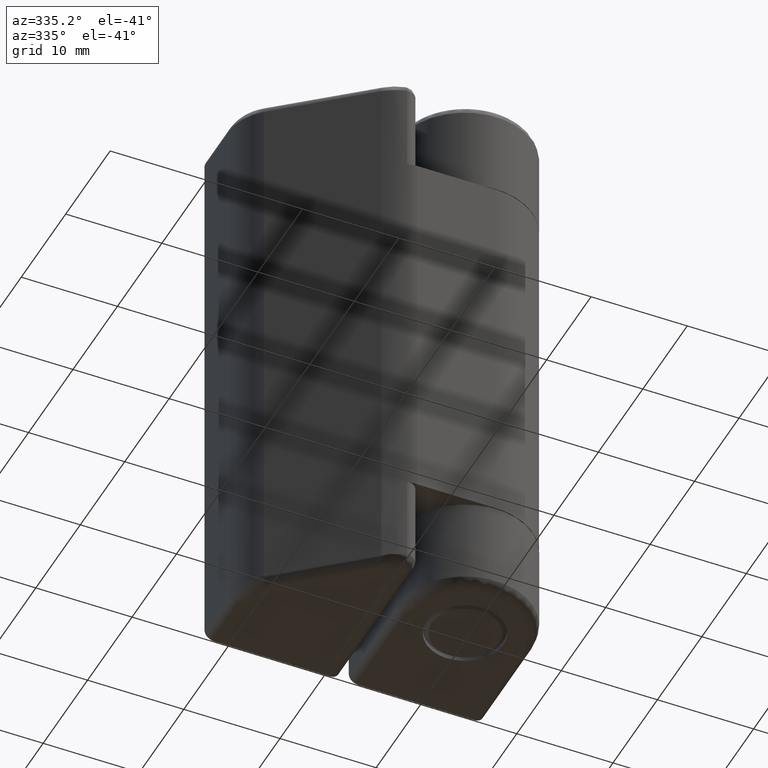
[diagram: clean part render]
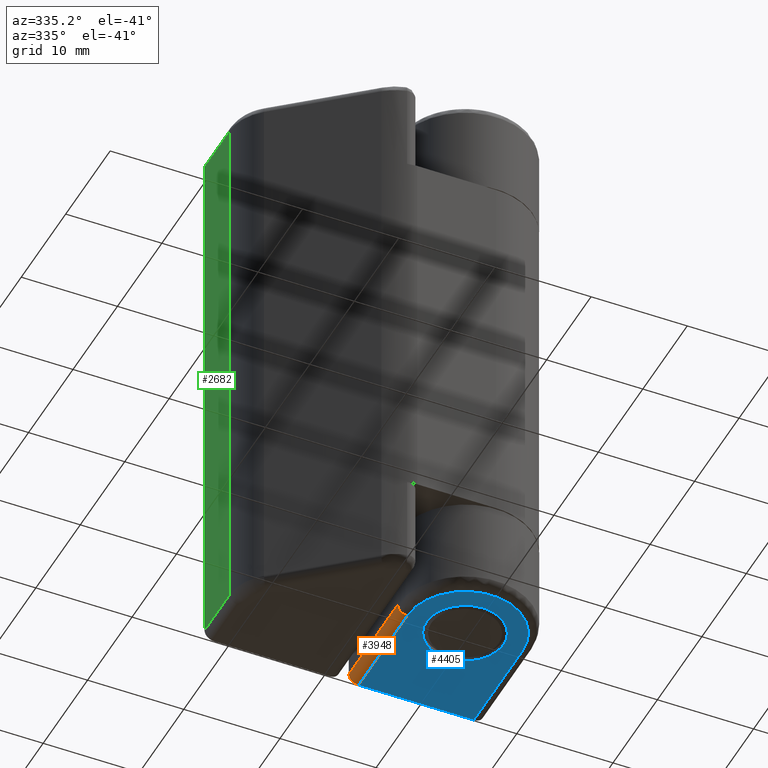
[diagram: same view with three faces highlighted in distinct colors, each labeled with its STEP entity id]
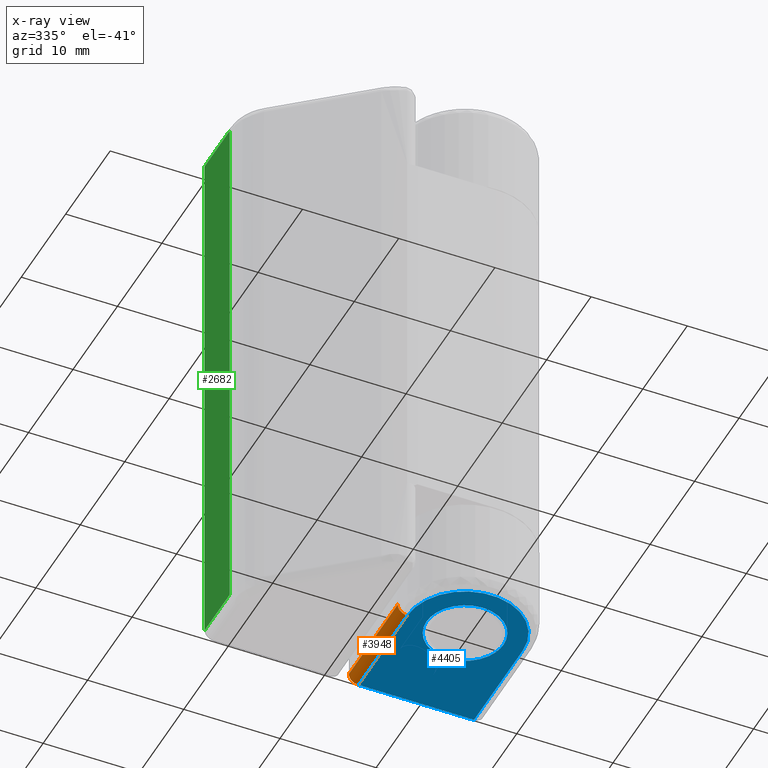
[diagram: x-ray of the same camera — body ghosted, the three highlighted faces saturated]
A machine part, auxiliary view with three faces highlighted in distinct colors.
The next image is the same camera in x-ray (body ghosted, the three faces saturated) — at least one of them is partly hidden behind the body in this view.
Their STEP definitions:

[orange] entity #3948 — the highlighted face is a freeform B-spline surface patch.
#3888=CARTESIAN_POINT('',(-5.973823051692126,11.274999984728369,0.000342675024443));
#3889=CARTESIAN_POINT('',(-5.973823051692126,-0.281874373481340,0.000342675024443));
#3890=CARTESIAN_POINT('',(-7.064757588594119,11.274999984728371,-0.028224451195991));
#3891=CARTESIAN_POINT('',(-7.064757588594119,-0.281874373481340,-0.028224451195991));
#3892=CARTESIAN_POINT('',(-6.998134798421868,11.274999984728369,1.061048539534856));
#3893=CARTESIAN_POINT('',(-6.998134798421868,-0.281874373481340,1.061048539534856));
#3901=(BOUNDED_SURFACE()B_SPLINE_SURFACE(1,2,((#3888,#3890,#3892),(#3889,#3891,#3893)),.UNSPECIFIED.,.F.,.F.,.U.)B_SPLINE_SURFACE_WITH_KNOTS((2,2),(3,3),(0.0,11.556874358209710),(0.0,1.0),.UNSPECIFIED.)GEOMETRIC_REPRESENTATION_ITEM()RATIONAL_B_SPLINE_SURFACE(((1.0,0.675590207615660,1.0),(1.0,0.675590207615660,1.0)))REPRESENTATION_ITEM('')SURFACE());
#3902=CARTESIAN_POINT('',(-6.0,0.000000610865237,0.0));
#3903=VERTEX_POINT('',#3902);
#3904=CARTESIAN_POINT('',(-7.0,0.000000610865237,1.0));
#3905=VERTEX_POINT('',#3904);
#3906=CARTESIAN_POINT('',(-6.0,0.000000610865237,0.0));
#3907=CARTESIAN_POINT('',(-6.999999999999999,0.000000610865237,0.0));
#3908=CARTESIAN_POINT('',(-7.0,0.000000610865237,1.0));
#3916=(BOUNDED_CURVE()B_SPLINE_CURVE(2,(#3906,#3907,#3908),.UNSPECIFIED.,.F.,.U.)CURVE()GEOMETRIC_REPRESENTATION_ITEM()QUASI_UNIFORM_CURVE()RATIONAL_B_SPLINE_CURVE((1.0,0.707106781186548,1.0))REPRESENTATION_ITEM(''));
#3917=EDGE_CURVE('',#3903,#3905,#3916,.T.);
#3918=ORIENTED_EDGE('',*,*,#3917,.T.);
#3919=CARTESIAN_POINT('',(-7.0,11.0,1.0));
#3920=VERTEX_POINT('',#3919);
#3921=CARTESIAN_POINT('',(-7.0,11.0,1.0));
#3922=CARTESIAN_POINT('',(-7.0,0.000000610865237,1.0));
#3923=QUASI_UNIFORM_CURVE('',1,(#3921,#3922),.UNSPECIFIED.,.F.,.U.);
#3924=EDGE_CURVE('',#3920,#3905,#3923,.T.);
#3925=ORIENTED_EDGE('',*,*,#3924,.F.);
#3926=CARTESIAN_POINT('',(-6.0,11.0,0.0));
#3927=VERTEX_POINT('',#3926);
#3928=CARTESIAN_POINT('',(-6.0,11.0,0.0));
#3929=CARTESIAN_POINT('',(-6.999999999999999,11.0,0.0));
#3930=CARTESIAN_POINT('',(-7.0,11.0,1.0));
#3938=(BOUNDED_CURVE()B_SPLINE_CURVE(2,(#3928,#3929,#3930),.UNSPECIFIED.,.F.,.U.)CURVE()GEOMETRIC_REPRESENTATION_ITEM()QUASI_UNIFORM_CURVE()RATIONAL_B_SPLINE_CURVE((1.0,0.707106781186548,1.0))REPRESENTATION_ITEM(''));
#3939=EDGE_CURVE('',#3927,#3920,#3938,.T.);
#3940=ORIENTED_EDGE('',*,*,#3939,.F.);
#3941=CARTESIAN_POINT('',(-6.0,0.000000610865237,0.0));
#3942=CARTESIAN_POINT('',(-6.0,11.0,0.0));
#3943=QUASI_UNIFORM_CURVE('',1,(#3941,#3942),.UNSPECIFIED.,.F.,.U.);
#3944=EDGE_CURVE('',#3903,#3927,#3943,.T.);
#3945=ORIENTED_EDGE('',*,*,#3944,.F.);
#3946=EDGE_LOOP('',(#3918,#3925,#3940,#3945));
#3947=FACE_OUTER_BOUND('',#3946,.T.);
#3948=ADVANCED_FACE('',(#3947),#3901,.T.);

[blue] entity #4405 — the highlighted face is a freeform B-spline surface patch.
#3470=CARTESIAN_POINT('',(-2.611770808497507,-3.029629225479135,5.305159E-014));
#3471=VERTEX_POINT('',#3470);
#3472=CARTESIAN_POINT('',(-4.0,0.0,0.0));
#3473=VERTEX_POINT('',#3472);
#3474=CARTESIAN_POINT('',(-2.611770808497507,-3.029629225479134,5.305159E-014));
#3475=CARTESIAN_POINT('',(-4.0,-1.832870081694665,0.0));
#3476=CARTESIAN_POINT('',(-4.0,0.0,0.0));
#3484=(BOUNDED_CURVE()B_SPLINE_CURVE(2,(#3474,#3475,#3476),.UNSPECIFIED.,.F.,.U.)B_SPLINE_CURVE_WITH_KNOTS((3,3),(0.363838989722235,0.500000000000000),.UNSPECIFIED.)CURVE()GEOMETRIC_REPRESENTATION_ITEM()RATIONAL_B_SPLINE_CURVE((0.854720915922498,0.840477453691415,1.0))REPRESENTATION_ITEM(''));
#3485=EDGE_CURVE('',#3471,#3473,#3484,.T.);
#3487=CARTESIAN_POINT('',(4.0,0.0,0.0));
#3488=VERTEX_POINT('',#3487);
#3489=CARTESIAN_POINT('',(-4.0,0.0,0.0));
#3490=CARTESIAN_POINT('',(-4.000000000000000,4.000000000000000,0.0));
#3491=CARTESIAN_POINT('',(0.0,4.0,0.0));
#3492=CARTESIAN_POINT('',(4.000000000000000,4.000000000000000,0.0));
#3493=CARTESIAN_POINT('',(4.0,0.0,0.0));
#3501=(BOUNDED_CURVE()B_SPLINE_CURVE(2,(#3489,#3490,#3491,#3492,#3493),.UNSPECIFIED.,.F.,.U.)B_SPLINE_CURVE_WITH_KNOTS((3,2,3),(0.500000000000000,0.750000000000000,1.0),.UNSPECIFIED.)CURVE()GEOMETRIC_REPRESENTATION_ITEM()RATIONAL_B_SPLINE_CURVE((1.0,0.707106781186548,1.0,0.707106781186548,1.0))REPRESENTATION_ITEM(''));
#3502=EDGE_CURVE('',#3473,#3488,#3501,.T.);
#3504=CARTESIAN_POINT('',(-0.101568946200916,-3.998710260717527,2.775558E-017));
#3505=VERTEX_POINT('',#3504);
#3506=CARTESIAN_POINT('',(4.0,0.0,0.0));
#3507=CARTESIAN_POINT('',(4.000000000000000,-4.000000000000000,0.0));
#3508=CARTESIAN_POINT('',(0.0,-4.0,0.0));
#3509=CARTESIAN_POINT('',(-0.050792661822428,-4.0,0.0));
#3510=CARTESIAN_POINT('',(-0.101568946200916,-3.998710260717526,2.775558E-017));
#3518=(BOUNDED_CURVE()B_SPLINE_CURVE(2,(#3506,#3507,#3508,#3509,#3510),.UNSPECIFIED.,.F.,.U.)B_SPLINE_CURVE_WITH_KNOTS((3,2,3),(0.0,0.250000000000000,0.254465989452630),.UNSPECIFIED.)CURVE()GEOMETRIC_REPRESENTATION_ITEM()RATIONAL_B_SPLINE_CURVE((1.0,0.707106781186548,1.0,0.994767767896129,0.989722472539374))REPRESENTATION_ITEM(''));
#3519=EDGE_CURVE('',#3488,#3505,#3518,.T.);
#3615=CARTESIAN_POINT('',(-0.101568946200916,-3.998710260717526,2.775558E-017));
#3616=CARTESIAN_POINT('',(-1.529725620094527,-3.962434472002540,0.0));
#3617=CARTESIAN_POINT('',(-2.611770808497507,-3.029629225479134,5.305159E-014));
#3625=(BOUNDED_CURVE()B_SPLINE_CURVE(2,(#3615,#3616,#3617),.UNSPECIFIED.,.F.,.U.)B_SPLINE_CURVE_WITH_KNOTS((3,3),(0.254465989452630,0.363838989722235),.UNSPECIFIED.)CURVE()GEOMETRIC_REPRESENTATION_ITEM()RATIONAL_B_SPLINE_CURVE((0.989722472539374,0.866162151524837,0.854720915922498))REPRESENTATION_ITEM(''));
#3626=EDGE_CURVE('',#3505,#3471,#3625,.T.);
#3902=CARTESIAN_POINT('',(-6.0,0.000000610865237,0.0));
#3903=VERTEX_POINT('',#3902);
#3926=CARTESIAN_POINT('',(-6.0,11.0,0.0));
#3927=VERTEX_POINT('',#3926);
#3941=CARTESIAN_POINT('',(-6.0,0.000000610865237,0.0));
#3942=CARTESIAN_POINT('',(-6.0,11.0,0.0));
#3943=QUASI_UNIFORM_CURVE('',1,(#3941,#3942),.UNSPECIFIED.,.F.,.U.);
#3944=EDGE_CURVE('',#3903,#3927,#3943,.T.);
#3972=CARTESIAN_POINT('',(6.0,0.0,0.0));
#3973=VERTEX_POINT('',#3972);
#4007=CARTESIAN_POINT('',(6.0,0.0,0.0));
#4008=CARTESIAN_POINT('',(5.999999999999999,-3.464101750885587,0.0));
#4009=CARTESIAN_POINT('',(2.999999823658394,-5.196152524517501,0.0));
#4010=CARTESIAN_POINT('',(-0.000000352683213,-6.928203298149417,0.0));
#4011=CARTESIAN_POINT('',(-3.000000352683202,-5.196152219084875,0.0));
#4012=CARTESIAN_POINT('',(-6.000000352683191,-3.464101140020333,0.0));
#4013=CARTESIAN_POINT('',(-6.0,0.000000610865237,0.0));
#4021=(BOUNDED_CURVE()B_SPLINE_CURVE(2,(#4007,#4008,#4009,#4010,#4011,#4012,#4013),.UNSPECIFIED.,.F.,.U.)B_SPLINE_CURVE_WITH_KNOTS((3,2,2,3),(0.0,0.333333333333333,0.666666666666667,1.0),.UNSPECIFIED.)CURVE()GEOMETRIC_REPRESENTATION_ITEM()RATIONAL_B_SPLINE_CURVE((1.0,0.866025395300199,1.0,0.866025395300199,1.0,0.866025395300199,1.0))REPRESENTATION_ITEM(''));
#4022=EDGE_CURVE('',#3973,#3903,#4021,.T.);
#4043=CARTESIAN_POINT('',(6.0,11.0,0.0));
#4044=VERTEX_POINT('',#4043);
#4064=CARTESIAN_POINT('',(6.0,11.0,0.0));
#4065=CARTESIAN_POINT('',(6.0,0.0,0.0));
#4066=QUASI_UNIFORM_CURVE('',1,(#4064,#4065),.UNSPECIFIED.,.F.,.U.);
#4067=EDGE_CURVE('',#4044,#3973,#4066,.T.);
#4384=CARTESIAN_POINT('',(-6.599399976741672,-6.849149967050694,0.0));
#4385=CARTESIAN_POINT('',(6.599400298606753,-6.849149967050694,0.0));
#4386=CARTESIAN_POINT('',(-6.599399976741672,11.849150423026231,0.0));
#4387=CARTESIAN_POINT('',(6.599400298606753,11.849150423026231,0.0));
#4388=B_SPLINE_SURFACE_WITH_KNOTS('',1,1,((#4384,#4386),(#4385,#4387)),.UNSPECIFIED.,.F.,.F.,.U.,(2,2),(2,2),(0.0,13.198800275348431),(0.0,18.698300390076930),.UNSPECIFIED.);
#4389=ORIENTED_EDGE('',*,*,#4022,.T.);
#4390=ORIENTED_EDGE('',*,*,#3944,.T.);
#4391=CARTESIAN_POINT('',(-6.0,11.0,0.0));
#4392=CARTESIAN_POINT('',(6.0,11.0,0.0));
#4393=QUASI_UNIFORM_CURVE('',1,(#4391,#4392),.UNSPECIFIED.,.F.,.U.);
#4394=EDGE_CURVE('',#3927,#4044,#4393,.T.);
#4395=ORIENTED_EDGE('',*,*,#4394,.T.);
#4396=ORIENTED_EDGE('',*,*,#4067,.T.);
#4397=EDGE_LOOP('',(#4389,#4390,#4395,#4396));
#4398=FACE_OUTER_BOUND('',#4397,.T.);
#4399=ORIENTED_EDGE('',*,*,#3502,.F.);
#4400=ORIENTED_EDGE('',*,*,#3485,.F.);
#4401=ORIENTED_EDGE('',*,*,#3626,.F.);
#4402=ORIENTED_EDGE('',*,*,#3519,.F.);
#4403=EDGE_LOOP('',(#4399,#4400,#4401,#4402));
#4404=FACE_BOUND('',#4403,.T.);
#4405=ADVANCED_FACE('',(#4398,#4404),#4388,.F.);

[green] entity #2682 — the highlighted face is a freeform B-spline surface patch.
#1649=CARTESIAN_POINT('',(-22.0,5.341873000000000,59.0));
#1650=VERTEX_POINT('',#1649);
#1673=CARTESIAN_POINT('',(-22.0,11.0,59.0));
#1674=VERTEX_POINT('',#1673);
#1688=CARTESIAN_POINT('',(-22.0,5.341873000000000,59.0));
#1689=CARTESIAN_POINT('',(-22.0,11.0,59.0));
#1690=QUASI_UNIFORM_CURVE('',1,(#1688,#1689),.UNSPECIFIED.,.F.,.U.);
#1691=EDGE_CURVE('',#1650,#1674,#1690,.T.);
#1990=CARTESIAN_POINT('',(-22.0,5.341873000000000,1.0));
#1991=VERTEX_POINT('',#1990);
#2005=CARTESIAN_POINT('',(-22.0,11.0,1.0));
#2006=VERTEX_POINT('',#2005);
#2007=CARTESIAN_POINT('',(-22.0,11.0,1.0));
#2008=CARTESIAN_POINT('',(-22.0,5.341873000000000,1.0));
#2009=QUASI_UNIFORM_CURVE('',1,(#2007,#2008),.UNSPECIFIED.,.F.,.U.);
#2010=EDGE_CURVE('',#2006,#1991,#2009,.T.);
#2663=CARTESIAN_POINT('',(-22.0,5.059249726659891,-1.897099887584744));
#2664=CARTESIAN_POINT('',(-22.0,5.059249726659891,61.897101443265967));
#2665=CARTESIAN_POINT('',(-22.0,11.282623576865690,-1.897099887584744));
#2666=CARTESIAN_POINT('',(-22.0,11.282623576865690,61.897101443265967));
#2667=B_SPLINE_SURFACE_WITH_KNOTS('',1,1,((#2663,#2665),(#2664,#2666)),.UNSPECIFIED.,.F.,.F.,.U.,(2,2),(2,2),(0.0,63.794201330850719),(0.0,6.223373850205801),.UNSPECIFIED.);
#2668=CARTESIAN_POINT('',(-22.0,5.341873000000000,59.0));
#2669=CARTESIAN_POINT('',(-22.0,5.341873000000000,1.0));
#2670=QUASI_UNIFORM_CURVE('',1,(#2668,#2669),.UNSPECIFIED.,.F.,.U.);
#2671=EDGE_CURVE('',#1650,#1991,#2670,.T.);
#2672=ORIENTED_EDGE('',*,*,#2671,.F.);
#2673=ORIENTED_EDGE('',*,*,#1691,.T.);
#2674=CARTESIAN_POINT('',(-22.0,11.0,59.0));
#2675=CARTESIAN_POINT('',(-22.0,11.0,1.0));
#2676=QUASI_UNIFORM_CURVE('',1,(#2674,#2675),.UNSPECIFIED.,.F.,.U.);
#2677=EDGE_CURVE('',#1674,#2006,#2676,.T.);
#2678=ORIENTED_EDGE('',*,*,#2677,.T.);
#2679=ORIENTED_EDGE('',*,*,#2010,.T.);
#2680=EDGE_LOOP('',(#2672,#2673,#2678,#2679));
#2681=FACE_OUTER_BOUND('',#2680,.T.);
#2682=ADVANCED_FACE('',(#2681),#2667,.T.);